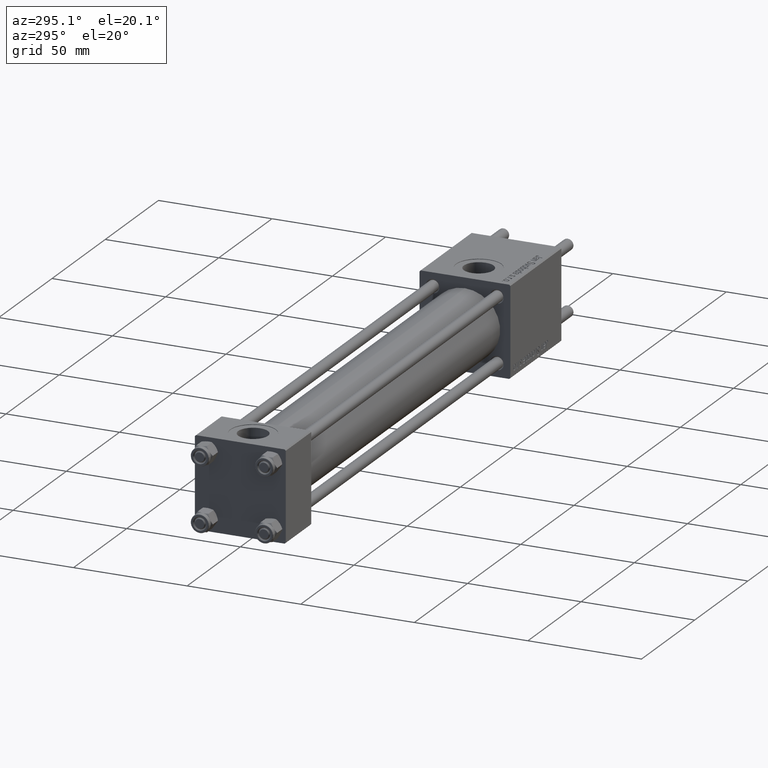
[diagram: clean part render]
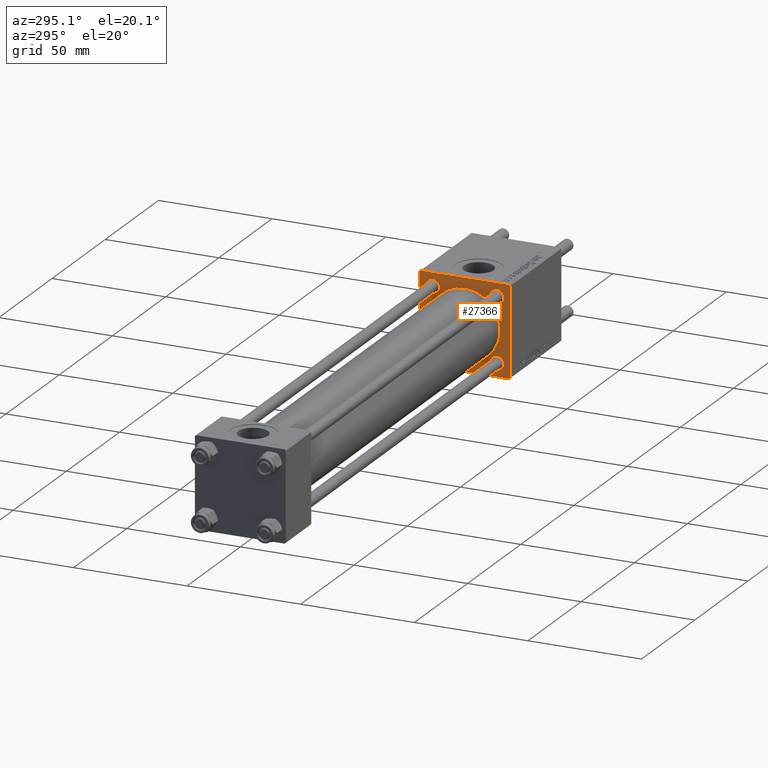
[diagram: same view with one face highlighted and labeled with its STEP entity id]
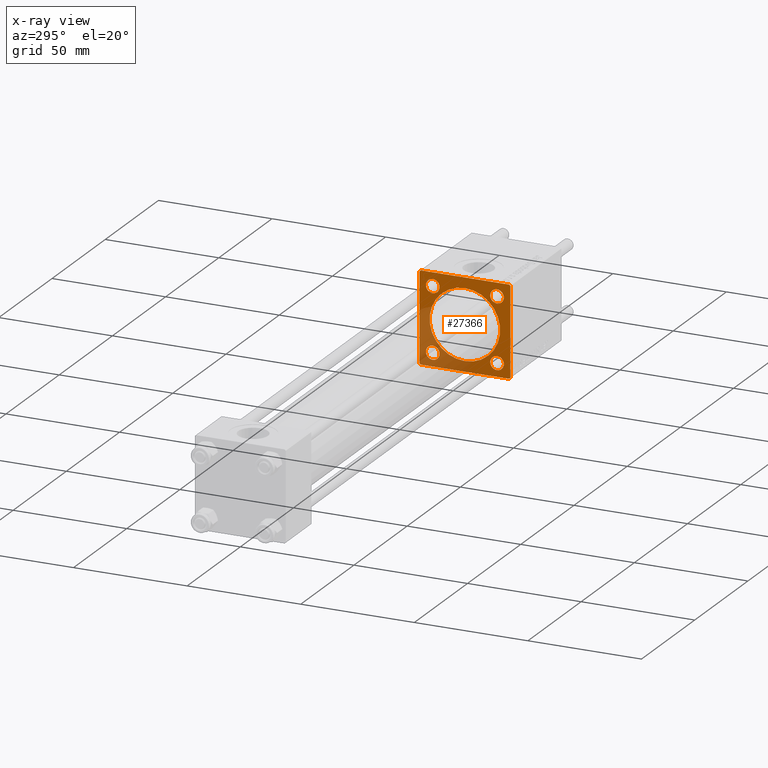
[diagram: x-ray of the same camera — body ghosted, the highlighted face saturated]
A machine part, auxiliary view. The second image highlights one B-rep face of the part: STEP entity #27366.
The next image is the same camera in x-ray: the body ghosted, the highlighted face saturated — about 29% of this face is hidden behind the body in this view.
In plain terms, the highlighted planar face has unit normal (-1, 0, 0).
Its self-contained STEP definition (entity closure, byte-faithful):
#521 = CARTESIAN_POINT ( 'NONE',  ( 211.0000000000000000, 19.99999999999999645, -20.00000000000000000 ) ) ;
#608 = CARTESIAN_POINT ( 'NONE',  ( 211.0000000000000000, -14.15000000000000036, -11.15000000000002522 ) ) ;
#929 = VERTEX_POINT ( 'NONE', #11892 ) ;
#1728 = CARTESIAN_POINT ( 'NONE',  ( 211.0000000000000000, 14.15000000000000036, 14.15000000000000036 ) ) ;
#1989 = CARTESIAN_POINT ( 'NONE',  ( 211.0000000000000000, -19.74999999999945999, 19.75000000000055067 ) ) ;
#2286 = DIRECTION ( 'NONE',  ( 1.000000000000000000, 0.000000000000000000, 0.000000000000000000 ) ) ;
#2441 = CARTESIAN_POINT ( 'NONE',  ( 211.0000000000000000, 19.74999999999999645, -19.74999999999999645 ) ) ;
#2809 = EDGE_CURVE ( 'NONE', #33328, #27632, #7770, .T. ) ;
#3168 = FACE_BOUND ( 'NONE', #27447, .T. ) ;
#3224 = DIRECTION ( 'NONE',  ( 0.000000000000000000, 0.000000000000000000, -1.000000000000000000 ) ) ;
#3252 = EDGE_CURVE ( 'NONE', #929, #37784, #49898, .T. ) ;
#3454 = EDGE_CURVE ( 'NONE', #6955, #40977, #11589, .T. ) ;
#3463 = CARTESIAN_POINT ( 'NONE',  ( 211.0000000000000000, -20.00000000000000355, 19.50000000000002487 ) ) ;
#3924 = ORIENTED_EDGE ( 'NONE', *, *, #12085, .T. ) ;
#3926 = AXIS2_PLACEMENT_3D ( 'NONE', #52807, #9213, #22677 ) ;
#4428 = AXIS2_PLACEMENT_3D ( 'NONE', #46652, #47485, #42073 ) ;
#4667 = AXIS2_PLACEMENT_3D ( 'NONE', #54305, #5266, #45114 ) ;
#4669 = CARTESIAN_POINT ( 'NONE',  ( 211.0000000000000000, 14.15000000000000036, -14.15000000000000036 ) ) ;
#5125 = ORIENTED_EDGE ( 'NONE', *, *, #52435, .F. ) ;
#5266 = DIRECTION ( 'NONE',  ( 1.000000000000000000, 0.000000000000000000, 0.000000000000000000 ) ) ;
#5617 = ORIENTED_EDGE ( 'NONE', *, *, #19936, .T. ) ;
#6955 = VERTEX_POINT ( 'NONE', #21850 ) ;
#7384 = ORIENTED_EDGE ( 'NONE', *, *, #11855, .T. ) ;
#7459 = FACE_BOUND ( 'NONE', #55484, .T. ) ;
#7573 = CIRCLE ( 'NONE', #3926, 3.000000000000004441 ) ;
#7770 = CIRCLE ( 'NONE', #51729, 3.000000000000004441 ) ;
#7870 = EDGE_CURVE ( 'NONE', #16034, #19576, #27170, .T. ) ;
#7967 = ORIENTED_EDGE ( 'NONE', *, *, #32623, .T. ) ;
#8074 = VECTOR ( 'NONE', #42711, 1000.000000000000000 ) ;
#9205 = CIRCLE ( 'NONE', #17470, 2.999999999999976463 ) ;
#9213 = DIRECTION ( 'NONE',  ( 1.000000000000000000, 0.000000000000000000, 0.000000000000000000 ) ) ;
#9390 = LINE ( 'NONE', #521, #35590 ) ;
#9722 = AXIS2_PLACEMENT_3D ( 'NONE', #44726, #2286, #40701 ) ;
#10494 = CARTESIAN_POINT ( 'NONE',  ( 211.0000000000000000, -20.00000000000000000, -19.49999999999999645 ) ) ;
#10557 = ORIENTED_EDGE ( 'NONE', *, *, #51351, .T. ) ;
#11248 = CARTESIAN_POINT ( 'NONE',  ( 211.0000000000000000, 19.99999999999999645, 20.00000000000000000 ) ) ;
#11530 = LINE ( 'NONE', #11248, #52268 ) ;
#11589 = LINE ( 'NONE', #2441, #17874 ) ;
#11668 = DIRECTION ( 'NONE',  ( 0.000000000000000000, 0.000000000000000000, -1.000000000000000000 ) ) ;
#11855 = EDGE_CURVE ( 'NONE', #19940, #35172, #21745, .T. ) ;
#11892 = CARTESIAN_POINT ( 'NONE',  ( 211.0000000000000000, -7.038826752868131828E-16, -15.50000000000000000 ) ) ;
#11929 = CARTESIAN_POINT ( 'NONE',  ( 211.0000000000000000, -14.15000000000000036, 11.14999999999999858 ) ) ;
#11958 = CIRCLE ( 'NONE', #44943, 2.999999999999976463 ) ;
#12038 = PLANE ( 'NONE',  #26355 ) ;
#12085 = EDGE_CURVE ( 'NONE', #23154, #39840, #39714, .T. ) ;
#13680 = AXIS2_PLACEMENT_3D ( 'NONE', #1728, #36406, #15461 ) ;
#14997 = DIRECTION ( 'NONE',  ( 0.000000000000000000, 0.000000000000000000, 1.000000000000000000 ) ) ;
#15461 = DIRECTION ( 'NONE',  ( 0.000000000000000000, 0.000000000000000000, 1.000000000000000000 ) ) ;
#16034 = VERTEX_POINT ( 'NONE', #608 ) ;
#16833 = ORIENTED_EDGE ( 'NONE', *, *, #32564, .F. ) ;
#17470 = AXIS2_PLACEMENT_3D ( 'NONE', #4669, #44798, #44508 ) ;
#17874 = VECTOR ( 'NONE', #23930, 1000.000000000000114 ) ;
#18177 = CIRCLE ( 'NONE', #4428, 15.50000000000000000 ) ;
#18234 = VERTEX_POINT ( 'NONE', #10494 ) ;
#18965 = EDGE_LOOP ( 'NONE', ( #44018, #36120 ) ) ;
#19576 = VERTEX_POINT ( 'NONE', #22918 ) ;
#19936 = EDGE_CURVE ( 'NONE', #40977, #29103, #9390, .T. ) ;
#19940 = VERTEX_POINT ( 'NONE', #43811 ) ;
#19980 = DIRECTION ( 'NONE',  ( 1.000000000000000000, 0.000000000000000000, 0.000000000000000000 ) ) ;
#20303 = LINE ( 'NONE', #1989, #51603 ) ;
#20636 = FACE_BOUND ( 'NONE', #38860, .T. ) ;
#20912 = LINE ( 'NONE', #42154, #8074 ) ;
#21745 = CIRCLE ( 'NONE', #9722, 3.000000000000004441 ) ;
#21850 = CARTESIAN_POINT ( 'NONE',  ( 211.0000000000000000, 19.99999999999999645, -19.50000000000000000 ) ) ;
#22441 = DIRECTION ( 'NONE',  ( 1.000000000000000000, 0.000000000000000000, 0.000000000000000000 ) ) ;
#22677 = DIRECTION ( 'NONE',  ( 0.000000000000000000, 0.000000000000000000, 1.000000000000000000 ) ) ;
#22918 = CARTESIAN_POINT ( 'NONE',  ( 211.0000000000000000, -14.15000000000000036, -17.14999999999997726 ) ) ;
#23154 = VERTEX_POINT ( 'NONE', #35364 ) ;
#23608 = VERTEX_POINT ( 'NONE', #44973 ) ;
#23785 = DIRECTION ( 'NONE',  ( 1.000000000000000000, 0.000000000000000000, 0.000000000000000000 ) ) ;
#23930 = DIRECTION ( 'NONE',  ( -0.000000000000000000, -0.7071067811865474617, -0.7071067811865474617 ) ) ;
#24201 = DIRECTION ( 'NONE',  ( 1.000000000000000000, 0.000000000000000000, 0.000000000000000000 ) ) ;
#24563 = VECTOR ( 'NONE', #42631, 1000.000000000000000 ) ;
#24944 = FACE_BOUND ( 'NONE', #37017, .T. ) ;
#25133 = LINE ( 'NONE', #55831, #24563 ) ;
#25209 = EDGE_LOOP ( 'NONE', ( #5617, #40079, #5125, #44400, #16833, #3924, #33616, #33783 ) ) ;
#25231 = LINE ( 'NONE', #33567, #44231 ) ;
#26347 = CARTESIAN_POINT ( 'NONE',  ( 211.0000000000000000, 0.000000000000000000, 0.000000000000000000 ) ) ;
#26355 = AXIS2_PLACEMENT_3D ( 'NONE', #26347, #35801, #35519 ) ;
#26514 = EDGE_CURVE ( 'NONE', #29103, #18234, #20912, .T. ) ;
#27170 = CIRCLE ( 'NONE', #33561, 2.999999999999976463 ) ;
#27366 = ADVANCED_FACE ( 'NONE', ( #20636, #7459, #24944, #42446, #3168, #51326 ), #12038, .T. ) ;
#27447 = EDGE_LOOP ( 'NONE', ( #7967, #35712 ) ) ;
#27632 = VERTEX_POINT ( 'NONE', #42382 ) ;
#28329 = ORIENTED_EDGE ( 'NONE', *, *, #40032, .T. ) ;
#28896 = VERTEX_POINT ( 'NONE', #49624 ) ;
#29103 = VERTEX_POINT ( 'NONE', #50465 ) ;
#32564 = EDGE_CURVE ( 'NONE', #23154, #23608, #25133, .T. ) ;
#32623 = EDGE_CURVE ( 'NONE', #37784, #929, #18177, .T. ) ;
#32770 = ORIENTED_EDGE ( 'NONE', *, *, #36099, .T. ) ;
#33328 = VERTEX_POINT ( 'NONE', #45308 ) ;
#33561 = AXIS2_PLACEMENT_3D ( 'NONE', #36974, #23785, #41564 ) ;
#33567 = CARTESIAN_POINT ( 'NONE',  ( 211.0000000000000000, -20.00000000000000355, 19.99999999999999645 ) ) ;
#33616 = ORIENTED_EDGE ( 'NONE', *, *, #40119, .T. ) ;
#33664 = DIRECTION ( 'NONE',  ( 0.000000000000000000, 0.000000000000000000, 1.000000000000000000 ) ) ;
#33783 = ORIENTED_EDGE ( 'NONE', *, *, #3454, .T. ) ;
#34387 = DIRECTION ( 'NONE',  ( 0.000000000000000000, 8.673617379884036705E-17, -1.000000000000000000 ) ) ;
#35172 = VERTEX_POINT ( 'NONE', #11929 ) ;
#35260 = AXIS2_PLACEMENT_3D ( 'NONE', #46649, #19980, #11668 ) ;
#35364 = CARTESIAN_POINT ( 'NONE',  ( 211.0000000000000000, 19.49999999999999645, 20.00000000000000000 ) ) ;
#35413 = CARTESIAN_POINT ( 'NONE',  ( 211.0000000000000000, 19.74999999999999645, 19.74999999999999645 ) ) ;
#35519 = DIRECTION ( 'NONE',  ( -0.000000000000000000, 0.000000000000000000, 1.000000000000000000 ) ) ;
#35590 = VECTOR ( 'NONE', #43517, 1000.000000000000000 ) ;
#35712 = ORIENTED_EDGE ( 'NONE', *, *, #3252, .T. ) ;
#35801 = DIRECTION ( 'NONE',  ( -1.000000000000000000, 0.000000000000000000, -0.000000000000000000 ) ) ;
#36099 = EDGE_CURVE ( 'NONE', #27632, #33328, #38389, .T. ) ;
#36120 = ORIENTED_EDGE ( 'NONE', *, *, #41244, .T. ) ;
#36406 = DIRECTION ( 'NONE',  ( 1.000000000000000000, 0.000000000000000000, 0.000000000000000000 ) ) ;
#36786 = CARTESIAN_POINT ( 'NONE',  ( 211.0000000000000000, 14.15000000000000036, -14.15000000000000036 ) ) ;
#36974 = CARTESIAN_POINT ( 'NONE',  ( 211.0000000000000000, -14.15000000000000036, -14.15000000000000036 ) ) ;
#37017 = EDGE_LOOP ( 'NONE', ( #40963, #28329 ) ) ;
#37784 = VERTEX_POINT ( 'NONE', #44002 ) ;
#38389 = CIRCLE ( 'NONE', #13680, 3.000000000000004441 ) ;
#38860 = EDGE_LOOP ( 'NONE', ( #7384, #10557 ) ) ;
#38871 = EDGE_CURVE ( 'NONE', #28896, #56386, #9205, .T. ) ;
#38948 = CARTESIAN_POINT ( 'NONE',  ( 211.0000000000000000, 19.49999999999999645, -20.00000000000000000 ) ) ;
#39714 = LINE ( 'NONE', #35413, #52792 ) ;
#39840 = VERTEX_POINT ( 'NONE', #50887 ) ;
#40032 = EDGE_CURVE ( 'NONE', #56386, #28896, #11958, .T. ) ;
#40079 = ORIENTED_EDGE ( 'NONE', *, *, #26514, .T. ) ;
#40119 = EDGE_CURVE ( 'NONE', #39840, #6955, #11530, .T. ) ;
#40389 = CIRCLE ( 'NONE', #4667, 2.999999999999976463 ) ;
#40701 = DIRECTION ( 'NONE',  ( 0.000000000000000000, 0.000000000000000000, 1.000000000000000000 ) ) ;
#40963 = ORIENTED_EDGE ( 'NONE', *, *, #38871, .T. ) ;
#40977 = VERTEX_POINT ( 'NONE', #38948 ) ;
#41244 = EDGE_CURVE ( 'NONE', #19576, #16034, #40389, .T. ) ;
#41564 = DIRECTION ( 'NONE',  ( 0.000000000000000000, 0.000000000000000000, 1.000000000000000000 ) ) ;
#42073 = DIRECTION ( 'NONE',  ( 0.000000000000000000, 0.000000000000000000, -1.000000000000000000 ) ) ;
#42154 = CARTESIAN_POINT ( 'NONE',  ( 211.0000000000000000, -19.75000000000055067, -19.74999999999945288 ) ) ;
#42382 = CARTESIAN_POINT ( 'NONE',  ( 211.0000000000000000, 14.15000000000000036, 11.14999999999999858 ) ) ;
#42446 = FACE_BOUND ( 'NONE', #18965, .T. ) ;
#42631 = DIRECTION ( 'NONE',  ( 0.000000000000000000, -1.000000000000000000, -8.673617379884035472E-17 ) ) ;
#42711 = DIRECTION ( 'NONE',  ( 0.000000000000000000, -0.7071067811865279218, 0.7071067811865672237 ) ) ;
#43517 = DIRECTION ( 'NONE',  ( 0.000000000000000000, -1.000000000000000000, 0.000000000000000000 ) ) ;
#43811 = CARTESIAN_POINT ( 'NONE',  ( 211.0000000000000000, -14.15000000000000036, 17.15000000000000568 ) ) ;
#44002 = CARTESIAN_POINT ( 'NONE',  ( 211.0000000000000000, -2.602085213965210642E-15, 15.50000000000000000 ) ) ;
#44018 = ORIENTED_EDGE ( 'NONE', *, *, #7870, .T. ) ;
#44231 = VECTOR ( 'NONE', #34387, 1000.000000000000000 ) ;
#44400 = ORIENTED_EDGE ( 'NONE', *, *, #48586, .T. ) ;
#44508 = DIRECTION ( 'NONE',  ( 0.000000000000000000, 0.000000000000000000, 1.000000000000000000 ) ) ;
#44726 = CARTESIAN_POINT ( 'NONE',  ( 211.0000000000000000, -14.15000000000000036, 14.15000000000000036 ) ) ;
#44798 = DIRECTION ( 'NONE',  ( 1.000000000000000000, 0.000000000000000000, 0.000000000000000000 ) ) ;
#44943 = AXIS2_PLACEMENT_3D ( 'NONE', #36786, #22441, #14997 ) ;
#44973 = CARTESIAN_POINT ( 'NONE',  ( 211.0000000000000000, -19.50000000000000355, 19.99999999999999645 ) ) ;
#45114 = DIRECTION ( 'NONE',  ( 0.000000000000000000, 0.000000000000000000, 1.000000000000000000 ) ) ;
#45308 = CARTESIAN_POINT ( 'NONE',  ( 211.0000000000000000, 14.15000000000000036, 17.15000000000000568 ) ) ;
#46649 = CARTESIAN_POINT ( 'NONE',  ( 211.0000000000000000, -2.602085213965210642E-15, 0.000000000000000000 ) ) ;
#46652 = CARTESIAN_POINT ( 'NONE',  ( 211.0000000000000000, -2.602085213965210642E-15, 0.000000000000000000 ) ) ;
#47008 = CARTESIAN_POINT ( 'NONE',  ( 211.0000000000000000, 14.15000000000000036, -17.14999999999997726 ) ) ;
#47485 = DIRECTION ( 'NONE',  ( 1.000000000000000000, 0.000000000000000000, 0.000000000000000000 ) ) ;
#48586 = EDGE_CURVE ( 'NONE', #52449, #23608, #20303, .T. ) ;
#48605 = DIRECTION ( 'NONE',  ( 0.000000000000000000, 0.7071067811865474617, -0.7071067811865474617 ) ) ;
#49624 = CARTESIAN_POINT ( 'NONE',  ( 211.0000000000000000, 14.15000000000000036, -11.15000000000002522 ) ) ;
#49898 = CIRCLE ( 'NONE', #35260, 15.50000000000000000 ) ;
#50020 = CARTESIAN_POINT ( 'NONE',  ( 211.0000000000000000, 14.15000000000000036, 14.15000000000000036 ) ) ;
#50465 = CARTESIAN_POINT ( 'NONE',  ( 211.0000000000000000, -19.50000000000002487, -20.00000000000000000 ) ) ;
#50887 = CARTESIAN_POINT ( 'NONE',  ( 211.0000000000000000, 19.99999999999999645, 19.50000000000000000 ) ) ;
#51278 = DIRECTION ( 'NONE',  ( -0.000000000000000000, 0.7071067811865671127, 0.7071067811865279218 ) ) ;
#51326 = FACE_OUTER_BOUND ( 'NONE', #25209, .T. ) ;
#51351 = EDGE_CURVE ( 'NONE', #35172, #19940, #7573, .T. ) ;
#51603 = VECTOR ( 'NONE', #51278, 1000.000000000000000 ) ;
#51729 = AXIS2_PLACEMENT_3D ( 'NONE', #50020, #24201, #33664 ) ;
#52268 = VECTOR ( 'NONE', #3224, 1000.000000000000000 ) ;
#52435 = EDGE_CURVE ( 'NONE', #52449, #18234, #25231, .T. ) ;
#52449 = VERTEX_POINT ( 'NONE', #3463 ) ;
#52792 = VECTOR ( 'NONE', #48605, 1000.000000000000114 ) ;
#52807 = CARTESIAN_POINT ( 'NONE',  ( 211.0000000000000000, -14.15000000000000036, 14.15000000000000036 ) ) ;
#54305 = CARTESIAN_POINT ( 'NONE',  ( 211.0000000000000000, -14.15000000000000036, -14.15000000000000036 ) ) ;
#54456 = ORIENTED_EDGE ( 'NONE', *, *, #2809, .T. ) ;
#55484 = EDGE_LOOP ( 'NONE', ( #54456, #32770 ) ) ;
#55831 = CARTESIAN_POINT ( 'NONE',  ( 211.0000000000000000, 19.99999999999999645, 20.00000000000000000 ) ) ;
#56386 = VERTEX_POINT ( 'NONE', #47008 ) ;